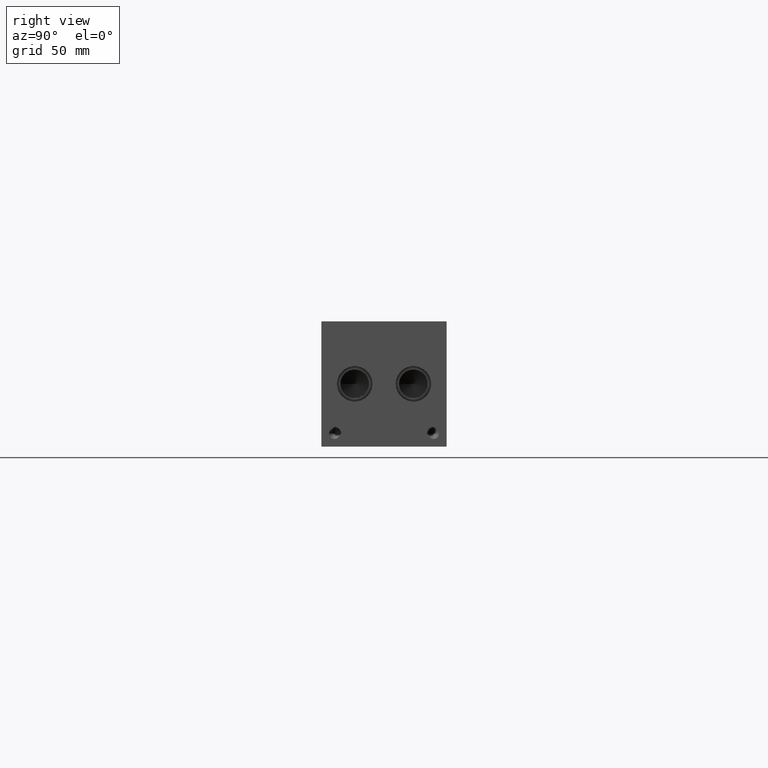
[diagram: clean part render]
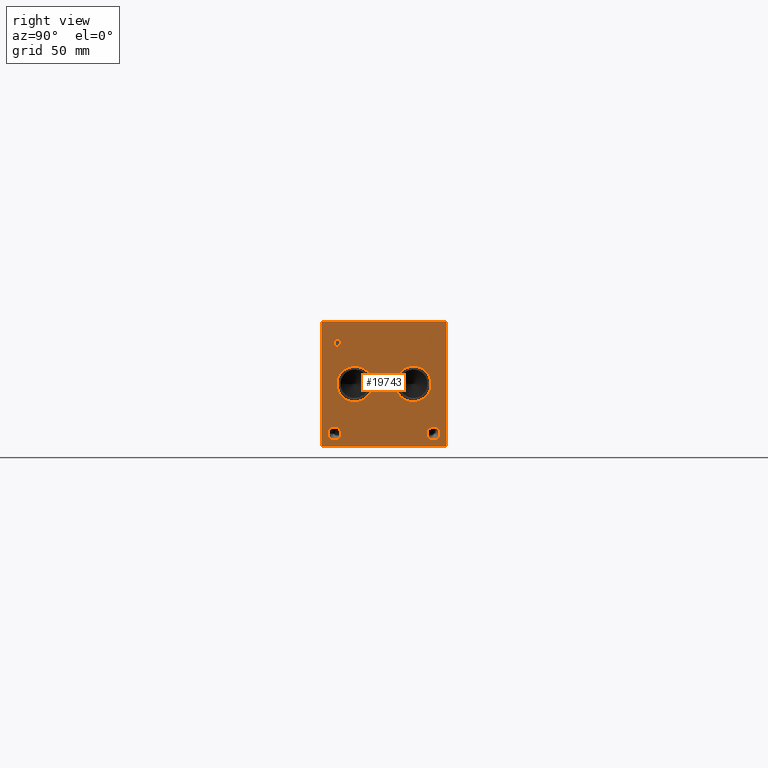
[diagram: same view with one face highlighted and labeled with its STEP entity id]
A machine part, right view. The second image highlights one B-rep face of the part: STEP entity #19743.
In plain terms, the highlighted planar face has unit normal (1, 0, 0).
Its self-contained STEP definition (entity closure, byte-faithful):
#307=CIRCLE('',#20596,10.795);
#308=CIRCLE('',#20597,10.795);
#309=CIRCLE('',#20598,10.795);
#310=CIRCLE('',#20599,10.795);
#311=CIRCLE('',#20600,3.9624);
#312=CIRCLE('',#20601,3.9624);
#313=CIRCLE('',#20602,3.9624);
#314=CIRCLE('',#20603,3.9624);
#933=FACE_BOUND('',#3429,.T.);
#934=FACE_BOUND('',#3430,.T.);
#935=FACE_BOUND('',#3431,.T.);
#936=FACE_BOUND('',#3432,.T.);
#937=FACE_BOUND('',#3433,.T.);
#938=FACE_BOUND('',#3434,.T.);
#1520=PLANE('',#20595);
#2296=FACE_OUTER_BOUND('',#3428,.T.);
#3428=EDGE_LOOP('',(#16270,#16271,#16272,#16273));
#3429=EDGE_LOOP('',(#16274,#16275));
#3430=EDGE_LOOP('',(#16276,#16277));
#3431=EDGE_LOOP('',(#16278,#16279));
#3432=EDGE_LOOP('',(#16280,#16281));
#3433=EDGE_LOOP('',(#16282,#16283,#16284,#16285,#16286,#16287,#16288,#16289));
#3434=EDGE_LOOP('',(#16290,#16291,#16292,#16293,#16294,#16295,#16296,#16297,
#16298));
#3974=LINE('',#26261,#5683);
#5275=LINE('',#32792,#6984);
#5278=LINE('',#32798,#6987);
#5281=LINE('',#32804,#6990);
#5284=LINE('',#32810,#6993);
#5287=LINE('',#32816,#6996);
#5291=LINE('',#32858,#7000);
#5292=LINE('',#32860,#7001);
#5293=LINE('',#32861,#7002);
#5294=LINE('',#32880,#7003);
#5295=LINE('',#32882,#7004);
#5296=LINE('',#32884,#7005);
#5297=LINE('',#32886,#7006);
#5298=LINE('',#32888,#7007);
#5299=LINE('',#32890,#7008);
#5300=LINE('',#32892,#7009);
#5301=LINE('',#32893,#7010);
#5683=VECTOR('',#21554,10.);
#6984=VECTOR('',#23779,10.);
#6987=VECTOR('',#23784,10.);
#6990=VECTOR('',#23789,10.);
#6993=VECTOR('',#23794,10.);
#6996=VECTOR('',#23799,10.);
#7000=VECTOR('',#23807,10.);
#7001=VECTOR('',#23808,10.);
#7002=VECTOR('',#23809,10.);
#7003=VECTOR('',#23826,10.);
#7004=VECTOR('',#23827,10.);
#7005=VECTOR('',#23828,10.);
#7006=VECTOR('',#23829,10.);
#7007=VECTOR('',#23830,10.);
#7008=VECTOR('',#23831,10.);
#7009=VECTOR('',#23832,10.);
#7010=VECTOR('',#23833,10.);
#7817=B_SPLINE_CURVE_WITH_KNOTS('',2,(#32759,#32760,#32761,#32762),
 .UNSPECIFIED.,.F.,.F.,(3,1,3),(0.,1.,2.),.UNSPECIFIED.);
#7819=B_SPLINE_CURVE_WITH_KNOTS('',2,(#32780,#32781,#32782,#32783),
 .UNSPECIFIED.,.F.,.F.,(3,1,3),(0.,1.,2.),.UNSPECIFIED.);
#7821=B_SPLINE_CURVE_WITH_KNOTS('',2,(#32829,#32830,#32831,#32832),
 .UNSPECIFIED.,.F.,.F.,(3,1,3),(0.,1.,2.),.UNSPECIFIED.);
#7823=B_SPLINE_CURVE_WITH_KNOTS('',2,(#32847,#32848,#32849,#32850),
 .UNSPECIFIED.,.F.,.F.,(3,1,3),(0.,1.,2.),.UNSPECIFIED.);
#7890=VERTEX_POINT('',#26258);
#7891=VERTEX_POINT('',#26260);
#9085=VERTEX_POINT('',#32757);
#9086=VERTEX_POINT('',#32758);
#9089=VERTEX_POINT('',#32779);
#9091=VERTEX_POINT('',#32791);
#9093=VERTEX_POINT('',#32797);
#9095=VERTEX_POINT('',#32803);
#9097=VERTEX_POINT('',#32809);
#9099=VERTEX_POINT('',#32815);
#9101=VERTEX_POINT('',#32828);
#9103=VERTEX_POINT('',#32857);
#9104=VERTEX_POINT('',#32859);
#9105=VERTEX_POINT('',#32862);
#9106=VERTEX_POINT('',#32863);
#9107=VERTEX_POINT('',#32866);
#9108=VERTEX_POINT('',#32867);
#9109=VERTEX_POINT('',#32870);
#9110=VERTEX_POINT('',#32871);
#9111=VERTEX_POINT('',#32874);
#9112=VERTEX_POINT('',#32875);
#9113=VERTEX_POINT('',#32878);
#9114=VERTEX_POINT('',#32879);
#9115=VERTEX_POINT('',#32881);
#9116=VERTEX_POINT('',#32883);
#9117=VERTEX_POINT('',#32885);
#9118=VERTEX_POINT('',#32887);
#9119=VERTEX_POINT('',#32889);
#9120=VERTEX_POINT('',#32891);
#9878=EDGE_CURVE('',#7890,#7891,#3974,.T.);
#11652=EDGE_CURVE('',#9085,#9086,#7817,.T.);
#11656=EDGE_CURVE('',#9089,#9085,#7819,.T.);
#11659=EDGE_CURVE('',#9091,#9089,#5275,.T.);
#11662=EDGE_CURVE('',#9093,#9091,#5278,.T.);
#11665=EDGE_CURVE('',#9095,#9093,#5281,.T.);
#11668=EDGE_CURVE('',#9097,#9095,#5284,.T.);
#11671=EDGE_CURVE('',#9099,#9097,#5287,.T.);
#11674=EDGE_CURVE('',#9101,#9099,#7821,.T.);
#11677=EDGE_CURVE('',#9086,#9101,#7823,.T.);
#11679=EDGE_CURVE('',#7890,#9103,#5291,.T.);
#11680=EDGE_CURVE('',#9103,#9104,#5292,.T.);
#11681=EDGE_CURVE('',#7891,#9104,#5293,.T.);
#11682=EDGE_CURVE('',#9105,#9106,#307,.T.);
#11683=EDGE_CURVE('',#9106,#9105,#308,.T.);
#11684=EDGE_CURVE('',#9107,#9108,#309,.T.);
#11685=EDGE_CURVE('',#9108,#9107,#310,.T.);
#11686=EDGE_CURVE('',#9109,#9110,#311,.T.);
#11687=EDGE_CURVE('',#9110,#9109,#312,.T.);
#11688=EDGE_CURVE('',#9111,#9112,#313,.T.);
#11689=EDGE_CURVE('',#9112,#9111,#314,.T.);
#11690=EDGE_CURVE('',#9113,#9114,#5294,.T.);
#11691=EDGE_CURVE('',#9114,#9115,#5295,.T.);
#11692=EDGE_CURVE('',#9115,#9116,#5296,.T.);
#11693=EDGE_CURVE('',#9116,#9117,#5297,.T.);
#11694=EDGE_CURVE('',#9117,#9118,#5298,.T.);
#11695=EDGE_CURVE('',#9118,#9119,#5299,.T.);
#11696=EDGE_CURVE('',#9119,#9120,#5300,.T.);
#11697=EDGE_CURVE('',#9120,#9113,#5301,.T.);
#16270=ORIENTED_EDGE('',*,*,#11679,.T.);
#16271=ORIENTED_EDGE('',*,*,#11680,.T.);
#16272=ORIENTED_EDGE('',*,*,#11681,.F.);
#16273=ORIENTED_EDGE('',*,*,#9878,.F.);
#16274=ORIENTED_EDGE('',*,*,#11682,.T.);
#16275=ORIENTED_EDGE('',*,*,#11683,.T.);
#16276=ORIENTED_EDGE('',*,*,#11684,.T.);
#16277=ORIENTED_EDGE('',*,*,#11685,.T.);
#16278=ORIENTED_EDGE('',*,*,#11686,.T.);
#16279=ORIENTED_EDGE('',*,*,#11687,.T.);
#16280=ORIENTED_EDGE('',*,*,#11688,.T.);
#16281=ORIENTED_EDGE('',*,*,#11689,.T.);
#16282=ORIENTED_EDGE('',*,*,#11690,.T.);
#16283=ORIENTED_EDGE('',*,*,#11691,.T.);
#16284=ORIENTED_EDGE('',*,*,#11692,.T.);
#16285=ORIENTED_EDGE('',*,*,#11693,.T.);
#16286=ORIENTED_EDGE('',*,*,#11694,.T.);
#16287=ORIENTED_EDGE('',*,*,#11695,.T.);
#16288=ORIENTED_EDGE('',*,*,#11696,.T.);
#16289=ORIENTED_EDGE('',*,*,#11697,.T.);
#16290=ORIENTED_EDGE('',*,*,#11652,.T.);
#16291=ORIENTED_EDGE('',*,*,#11677,.T.);
#16292=ORIENTED_EDGE('',*,*,#11674,.T.);
#16293=ORIENTED_EDGE('',*,*,#11671,.T.);
#16294=ORIENTED_EDGE('',*,*,#11668,.T.);
#16295=ORIENTED_EDGE('',*,*,#11665,.T.);
#16296=ORIENTED_EDGE('',*,*,#11662,.T.);
#16297=ORIENTED_EDGE('',*,*,#11659,.T.);
#16298=ORIENTED_EDGE('',*,*,#11656,.T.);
#19743=ADVANCED_FACE('',(#2296,#933,#934,#935,#936,#937,#938),#1520,.T.);
#20595=AXIS2_PLACEMENT_3D('',#32856,#23805,#23806);
#20596=AXIS2_PLACEMENT_3D('',#32864,#23810,#23811);
#20597=AXIS2_PLACEMENT_3D('',#32865,#23812,#23813);
#20598=AXIS2_PLACEMENT_3D('',#32868,#23814,#23815);
#20599=AXIS2_PLACEMENT_3D('',#32869,#23816,#23817);
#20600=AXIS2_PLACEMENT_3D('',#32872,#23818,#23819);
#20601=AXIS2_PLACEMENT_3D('',#32873,#23820,#23821);
#20602=AXIS2_PLACEMENT_3D('',#32876,#23822,#23823);
#20603=AXIS2_PLACEMENT_3D('',#32877,#23824,#23825);
#21554=DIRECTION('',(0.,0.,1.));
#23779=DIRECTION('',(0.,1.,0.));
#23784=DIRECTION('',(0.,0.,1.));
#23789=DIRECTION('',(0.,-1.,0.));
#23794=DIRECTION('',(0.,0.,-1.));
#23799=DIRECTION('',(0.,-1.,0.));
#23805=DIRECTION('center_axis',(1.,0.,0.));
#23806=DIRECTION('ref_axis',(0.,1.,0.));
#23807=DIRECTION('',(0.,1.,0.));
#23808=DIRECTION('',(0.,0.,1.));
#23809=DIRECTION('',(0.,1.,0.));
#23810=DIRECTION('center_axis',(-1.,0.,0.));
#23811=DIRECTION('ref_axis',(0.,1.,0.));
#23812=DIRECTION('center_axis',(-1.,0.,0.));
#23813=DIRECTION('ref_axis',(0.,1.,0.));
#23814=DIRECTION('center_axis',(-1.,0.,0.));
#23815=DIRECTION('ref_axis',(0.,1.,0.));
#23816=DIRECTION('center_axis',(-1.,0.,0.));
#23817=DIRECTION('ref_axis',(0.,1.,0.));
#23818=DIRECTION('center_axis',(-1.,0.,0.));
#23819=DIRECTION('ref_axis',(0.,1.,0.));
#23820=DIRECTION('center_axis',(-1.,0.,0.));
#23821=DIRECTION('ref_axis',(0.,1.,0.));
#23822=DIRECTION('center_axis',(-1.,0.,0.));
#23823=DIRECTION('ref_axis',(0.,1.,0.));
#23824=DIRECTION('center_axis',(-1.,0.,0.));
#23825=DIRECTION('ref_axis',(0.,1.,0.));
#23826=DIRECTION('',(0.,-1.,0.));
#23827=DIRECTION('',(0.,0.,1.));
#23828=DIRECTION('',(0.,-1.,0.));
#23829=DIRECTION('',(0.,0.,1.));
#23830=DIRECTION('',(0.,1.,0.));
#23831=DIRECTION('',(0.,0.,-1.));
#23832=DIRECTION('',(0.,-1.,0.));
#23833=DIRECTION('',(0.,0.,-1.));
#26258=CARTESIAN_POINT('',(431.8,0.,0.));
#26260=CARTESIAN_POINT('',(431.8,0.,76.2));
#26261=CARTESIAN_POINT('',(431.8,0.,0.));
#32757=CARTESIAN_POINT('',(431.8,11.0443172023594,64.6912681439707));
#32758=CARTESIAN_POINT('',(431.8,11.800759654532,63.1732373726039));
#32759=CARTESIAN_POINT('Ctrl Pts',(431.8,11.0443172023594,64.6912681439707));
#32760=CARTESIAN_POINT('Ctrl Pts',(431.8,11.3993820268486,64.4494123939564));
#32761=CARTESIAN_POINT('Ctrl Pts',(431.8,11.800759654532,63.7032616758269));
#32762=CARTESIAN_POINT('Ctrl Pts',(431.8,11.800759654532,63.1732373726039));
#32779=CARTESIAN_POINT('',(431.8,9.3822021543883,65.0874999046326));
#32780=CARTESIAN_POINT('Ctrl Pts',(431.8,9.3822021543883,65.0874999046326));
#32781=CARTESIAN_POINT('Ctrl Pts',(431.8,9.94824752676236,65.0874999046326));
#32782=CARTESIAN_POINT('Ctrl Pts',(431.8,10.740711048086,64.9022486918556));
#32783=CARTESIAN_POINT('Ctrl Pts',(431.8,11.0443172023594,64.6912681439707));
#32791=CARTESIAN_POINT('',(431.8,7.78698337769779,65.0874999046326));
#32792=CARTESIAN_POINT('',(431.8,3.89349168884889,65.0874999046326));
#32797=CARTESIAN_POINT('',(431.8,7.78698337769779,58.7375));
#32798=CARTESIAN_POINT('',(431.8,7.78698337769779,29.36875));
#32803=CARTESIAN_POINT('',(431.8,8.63090556923729,58.7375));
#32804=CARTESIAN_POINT('',(431.8,4.31545278461864,58.7375));
#32809=CARTESIAN_POINT('',(431.8,8.63090556923729,61.1045988299279));
#32810=CARTESIAN_POINT('',(431.8,8.63090556923729,30.5522994149639));
#32815=CARTESIAN_POINT('',(431.8,9.34618108523723,61.1045988299279));
#32816=CARTESIAN_POINT('',(431.8,4.67309054261861,61.1045988299279));
#32828=CARTESIAN_POINT('',(431.8,11.2450060162011,61.7632698086904));
#32829=CARTESIAN_POINT('Ctrl Pts',(431.8,11.2450060162011,61.7632698086904));
#32830=CARTESIAN_POINT('Ctrl Pts',(431.8,10.9156705268198,61.4390801863307));
#32831=CARTESIAN_POINT('Ctrl Pts',(431.8,10.0254355320861,61.1045988299279));
#32832=CARTESIAN_POINT('Ctrl Pts',(431.8,9.34618108523723,61.1045988299279));
#32847=CARTESIAN_POINT('Ctrl Pts',(431.8,11.800759654532,63.1732373726039));
#32848=CARTESIAN_POINT('Ctrl Pts',(431.8,11.800759654532,62.7615680108774));
#32849=CARTESIAN_POINT('Ctrl Pts',(431.8,11.5074452343018,62.0205631597695));
#32850=CARTESIAN_POINT('Ctrl Pts',(431.8,11.2450060162011,61.7632698086904));
#32856=CARTESIAN_POINT('Origin',(431.8,0.,0.));
#32857=CARTESIAN_POINT('',(431.8,76.2,0.));
#32858=CARTESIAN_POINT('',(431.8,0.,0.));
#32859=CARTESIAN_POINT('',(431.8,76.2,76.2));
#32860=CARTESIAN_POINT('',(431.8,76.2,0.));
#32861=CARTESIAN_POINT('',(431.8,0.,76.2));
#32862=CARTESIAN_POINT('',(431.8,31.0388,38.1));
#32863=CARTESIAN_POINT('',(431.8,9.4488,38.1));
#32864=CARTESIAN_POINT('Origin',(431.8,20.2438,38.1));
#32865=CARTESIAN_POINT('Origin',(431.8,20.2438,38.1));
#32866=CARTESIAN_POINT('',(431.8,66.7512,38.1));
#32867=CARTESIAN_POINT('',(431.8,45.1612,38.1));
#32868=CARTESIAN_POINT('Origin',(431.8,55.9562,38.1));
#32869=CARTESIAN_POINT('Origin',(431.8,55.9562,38.1));
#32870=CARTESIAN_POINT('',(431.8,11.8872,7.9248));
#32871=CARTESIAN_POINT('',(431.8,3.9624,7.9248));
#32872=CARTESIAN_POINT('Origin',(431.8,7.9248,7.9248));
#32873=CARTESIAN_POINT('Origin',(431.8,7.9248,7.9248));
#32874=CARTESIAN_POINT('',(431.8,72.2376,7.9248));
#32875=CARTESIAN_POINT('',(431.8,64.3128,7.9248));
#32876=CARTESIAN_POINT('Origin',(431.8,68.2752,7.9248));
#32877=CARTESIAN_POINT('Origin',(431.8,68.2752,7.9248));
#32878=CARTESIAN_POINT('',(431.8,67.262915271453,60.325));
#32879=CARTESIAN_POINT('',(431.8,66.4189930799135,60.325));
#32880=CARTESIAN_POINT('',(431.8,33.6314576357265,60.325));
#32881=CARTESIAN_POINT('',(431.8,66.4189930799135,65.9237033194816));
#32882=CARTESIAN_POINT('',(431.8,66.4189930799135,30.1625));
#32883=CARTESIAN_POINT('',(431.8,64.2886041329784,65.9237033194816));
#32884=CARTESIAN_POINT('',(431.8,33.2094965399567,65.9237033194816));
#32885=CARTESIAN_POINT('',(431.8,64.2886041329784,66.6749999046326));
#32886=CARTESIAN_POINT('',(431.8,64.2886041329784,32.9618516597408));
#32887=CARTESIAN_POINT('',(431.8,69.3933042183881,66.6749999046326));
#32888=CARTESIAN_POINT('',(431.8,32.1443020664892,66.6749999046326));
#32889=CARTESIAN_POINT('',(431.8,69.3933042183881,65.9237033194816));
#32890=CARTESIAN_POINT('',(431.8,69.3933042183881,33.3374999523163));
#32891=CARTESIAN_POINT('',(431.8,67.262915271453,65.9237033194816));
#32892=CARTESIAN_POINT('',(431.8,34.696652109194,65.9237033194816));
#32893=CARTESIAN_POINT('',(431.8,67.262915271453,32.9618516597408));